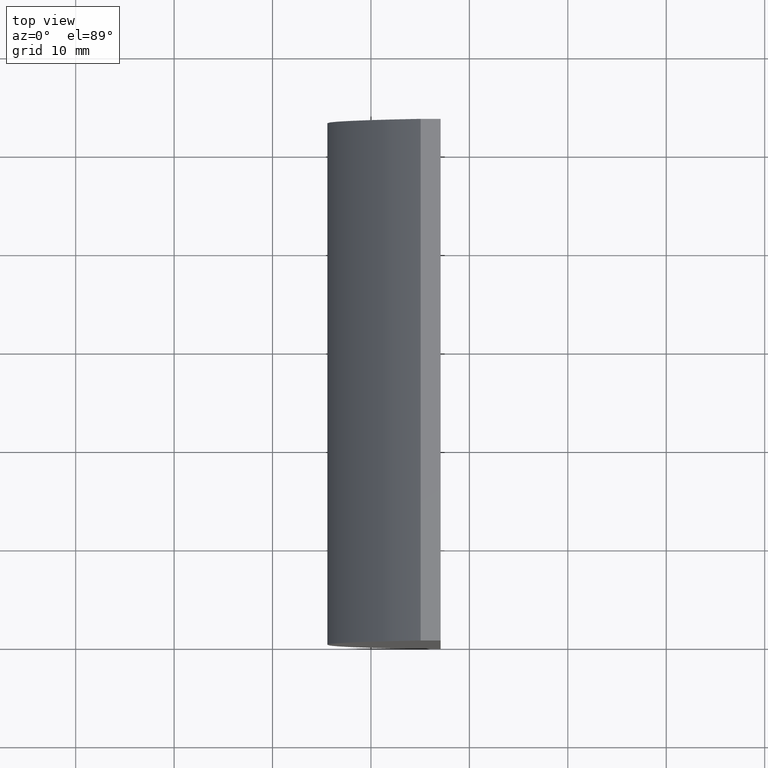
[diagram: clean part render]
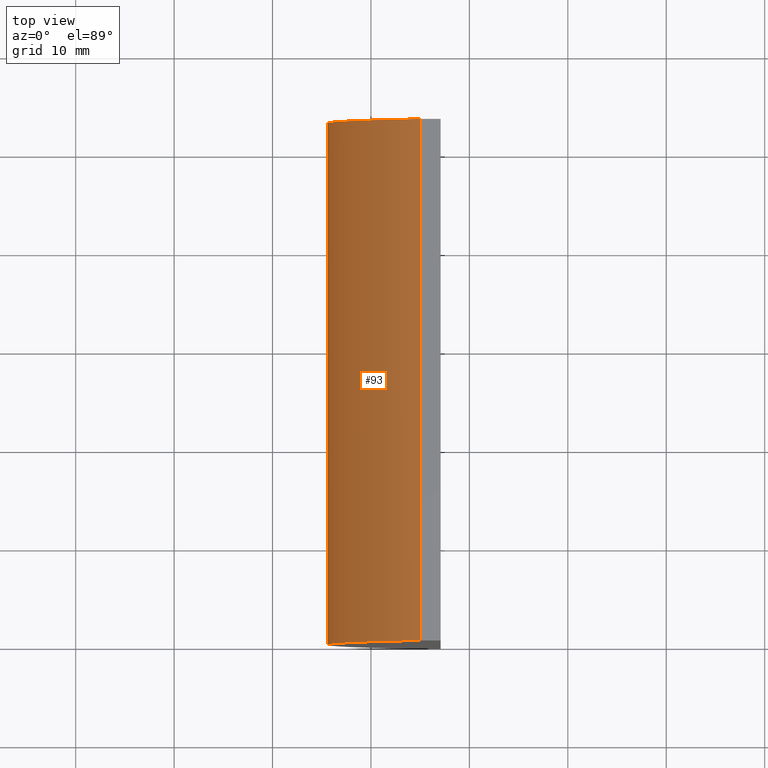
[diagram: same view with one face highlighted and labeled with its STEP entity id]
A machine part, top view. The second image highlights one B-rep face of the part: STEP entity #93.
In plain terms, the highlighted cylindrical surface (partial cylindrical patch) has radius 38.78 mm, axis along (-0, -1, -0).
Its self-contained STEP definition (entity closure, byte-faithful):
#1 = CARTESIAN_POINT ( 'NONE',  ( 4.355204334851265500, 53.00000000000000000, 4.286263797015675000E-017 ) ) ;
#2 = VECTOR ( 'NONE', #8, 1000.000000000000000 ) ;
#8 = DIRECTION ( 'NONE',  ( -0.0000000000000000000, -1.000000000000000000, -0.0000000000000000000 ) ) ;
#9 = VERTEX_POINT ( 'NONE', #32 ) ;
#15 = CARTESIAN_POINT ( 'NONE',  ( -24.94886364213786900, 53.00000000000000000, -25.39999999999999900 ) ) ;
#27 = EDGE_CURVE ( 'NONE', #168, #174, #76, .T. ) ;
#29 = CARTESIAN_POINT ( 'NONE',  ( -24.94886364213786900, 53.00000000000000000, 25.39999999999999900 ) ) ;
#30 = VECTOR ( 'NONE', #164, 1000.000000000000000 ) ;
#32 = CARTESIAN_POINT ( 'NONE',  ( -24.94886364213786900, 53.00000000000000000, 25.39999999999999900 ) ) ;
#41 = CARTESIAN_POINT ( 'NONE',  ( -24.94886364213786900, 0.0000000000000000000, -25.39999999999999900 ) ) ;
#46 = CARTESIAN_POINT ( 'NONE',  ( 4.355204334851265500, 0.0000000000000000000, 4.286263797015675000E-017 ) ) ;
#53 = CARTESIAN_POINT ( 'NONE',  ( -24.94886364213786900, 0.0000000000000000000, 25.39999999999999900 ) ) ;
#55 = ORIENTED_EDGE ( 'NONE', *, *, #64, .F. ) ;
#64 = EDGE_CURVE ( 'NONE', #9, #174, #88, .T. ) ;
#68 = ORIENTED_EDGE ( 'NONE', *, *, #27, .T. ) ;
#76 = CIRCLE ( 'NONE', #176, 38.78000000000000100 ) ;
#82 = DIRECTION ( 'NONE',  ( -0.0000000000000000000, -1.000000000000000000, -0.0000000000000000000 ) ) ;
#84 = CARTESIAN_POINT ( 'NONE',  ( -24.94886364213786900, 53.00000000000000000, -25.39999999999999900 ) ) ;
#88 = LINE ( 'NONE', #29, #30 ) ;
#91 = CYLINDRICAL_SURFACE ( 'NONE', #170, 38.78000000000000100 ) ;
#93 = ADVANCED_FACE ( 'NONE', ( #172 ), #91, .T. ) ;
#100 = DIRECTION ( 'NONE',  ( 0.0000000000000000000, 1.000000000000000000, 0.0000000000000000000 ) ) ;
#103 = CIRCLE ( 'NONE', #117, 38.78000000000000100 ) ;
#106 = EDGE_CURVE ( 'NONE', #157, #9, #103, .T. ) ;
#117 = AXIS2_PLACEMENT_3D ( 'NONE', #1, #161, #167 ) ;
#137 = LINE ( 'NONE', #84, #2 ) ;
#143 = ORIENTED_EDGE ( 'NONE', *, *, #106, .F. ) ;
#151 = DIRECTION ( 'NONE',  ( 0.0000000000000000000, 0.0000000000000000000, -1.000000000000000000 ) ) ;
#153 = EDGE_CURVE ( 'NONE', #157, #168, #137, .T. ) ;
#157 = VERTEX_POINT ( 'NONE', #15 ) ;
#161 = DIRECTION ( 'NONE',  ( 0.0000000000000000000, 1.000000000000000000, 0.0000000000000000000 ) ) ;
#164 = DIRECTION ( 'NONE',  ( -0.0000000000000000000, -1.000000000000000000, -0.0000000000000000000 ) ) ;
#167 = DIRECTION ( 'NONE',  ( 0.0000000000000000000, 0.0000000000000000000, 1.000000000000000000 ) ) ;
#168 = VERTEX_POINT ( 'NONE', #41 ) ;
#170 = AXIS2_PLACEMENT_3D ( 'NONE', #196, #82, #151 ) ;
#172 = FACE_OUTER_BOUND ( 'NONE', #189, .T. ) ;
#174 = VERTEX_POINT ( 'NONE', #53 ) ;
#176 = AXIS2_PLACEMENT_3D ( 'NONE', #46, #100, #202 ) ;
#178 = ORIENTED_EDGE ( 'NONE', *, *, #153, .T. ) ;
#189 = EDGE_LOOP ( 'NONE', ( #68, #55, #143, #178 ) ) ;
#196 = CARTESIAN_POINT ( 'NONE',  ( 4.355204334851265500, 53.00000000000000000, 4.286263797015675000E-017 ) ) ;
#202 = DIRECTION ( 'NONE',  ( 0.0000000000000000000, 0.0000000000000000000, 1.000000000000000000 ) ) ;